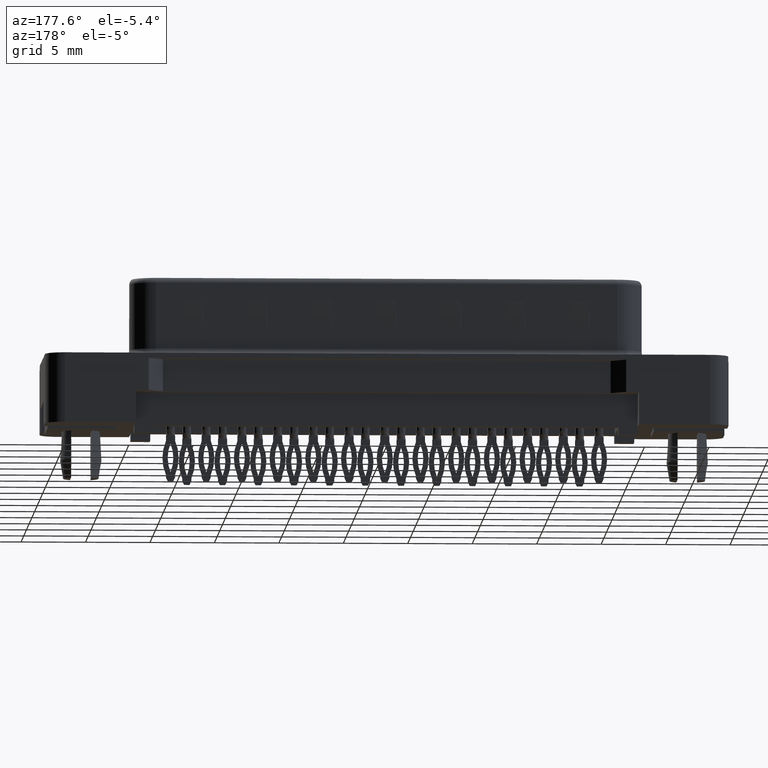
[diagram: clean part render]
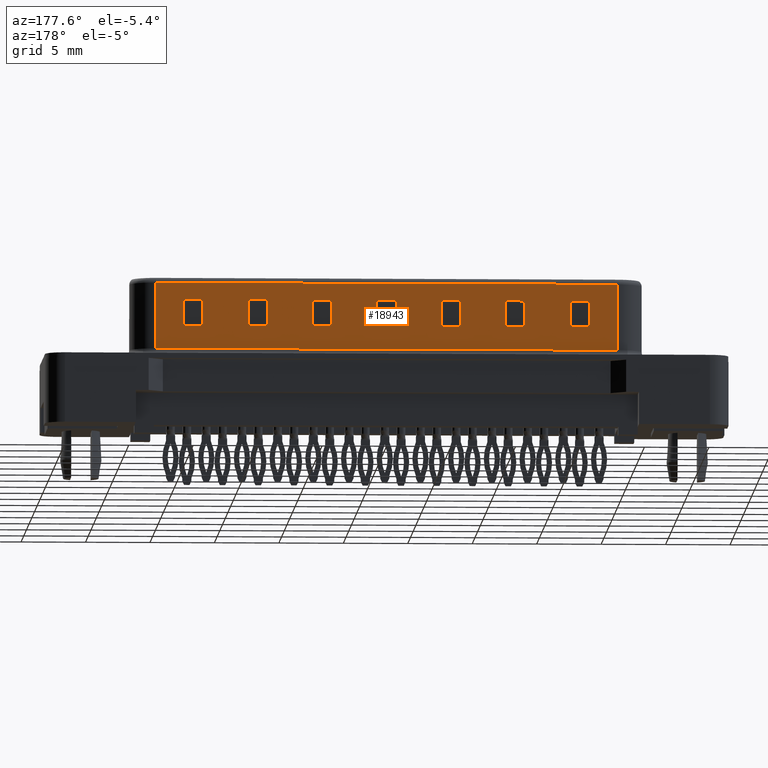
[diagram: same view with one face highlighted and labeled with its STEP entity id]
A machine part, auxiliary view. The second image highlights one B-rep face of the part: STEP entity #18943.
In plain terms, the highlighted planar face has unit normal (0, -1, 0).
Its self-contained STEP definition (entity closure, byte-faithful):
#24 = DIRECTION ( 'NONE',  ( -0.0000000000000000000, -0.0000000000000000000, 1.000000000000000000 ) ) ;
#65 = VECTOR ( 'NONE', #20283, 1000.000000000000000 ) ;
#125 = EDGE_CURVE ( 'NONE', #24026, #8981, #22902, .T. ) ;
#197 = DIRECTION ( 'NONE',  ( -1.000000000000000000, -0.0000000000000000000, -0.0000000000000000000 ) ) ;
#309 = EDGE_LOOP ( 'NONE', ( #10667, #2655, #4506, #16925 ) ) ;
#364 = EDGE_CURVE ( 'NONE', #4055, #8902, #10923, .T. ) ;
#512 = EDGE_CURVE ( 'NONE', #4323, #24196, #3724, .T. ) ;
#804 = CARTESIAN_POINT ( 'NONE',  ( 41.40000000000000568, 4.579999999999993854, 0.8999999999999998002 ) ) ;
#886 = VECTOR ( 'NONE', #5452, 1000.000000000000000 ) ;
#912 = VERTEX_POINT ( 'NONE', #8876 ) ;
#943 = FACE_BOUND ( 'NONE', #5695, .T. ) ;
#963 = DIRECTION ( 'NONE',  ( -0.0000000000000000000, -0.0000000000000000000, -1.000000000000000000 ) ) ;
#973 = ORIENTED_EDGE ( 'NONE', *, *, #17812, .F. ) ;
#1200 = PLANE ( 'NONE',  #17786 ) ;
#1355 = CARTESIAN_POINT ( 'NONE',  ( 5.640000000000002345, 4.579999999999998295, 0.8999999999999998002 ) ) ;
#1456 = ORIENTED_EDGE ( 'NONE', *, *, #20299, .F. ) ;
#1622 = ORIENTED_EDGE ( 'NONE', *, *, #9474, .T. ) ;
#1709 = EDGE_CURVE ( 'NONE', #22177, #12489, #12671, .T. ) ;
#1776 = EDGE_CURVE ( 'NONE', #24196, #4055, #24164, .T. ) ;
#1878 = DIRECTION ( 'NONE',  ( 0.0000000000000000000, 0.0000000000000000000, -1.000000000000000000 ) ) ;
#2076 = VECTOR ( 'NONE', #23140, 1000.000000000000000 ) ;
#2430 = VERTEX_POINT ( 'NONE', #12001 ) ;
#2655 = ORIENTED_EDGE ( 'NONE', *, *, #125, .F. ) ;
#2789 = ORIENTED_EDGE ( 'NONE', *, *, #18031, .T. ) ;
#2961 = VERTEX_POINT ( 'NONE', #1355 ) ;
#2976 = CARTESIAN_POINT ( 'NONE',  ( 19.27000000000000668, 4.579999999999998295, 4.704948974278314822 ) ) ;
#2977 = VERTEX_POINT ( 'NONE', #5250 ) ;
#2999 = LINE ( 'NONE', #3116, #7159 ) ;
#3101 = DIRECTION ( 'NONE',  ( -0.0000000000000000000, -0.0000000000000000000, 1.000000000000000000 ) ) ;
#3116 = CARTESIAN_POINT ( 'NONE',  ( 12.77000000000000490, 4.579999999999998295, 4.704948974278314822 ) ) ;
#3131 = LINE ( 'NONE', #10826, #23774 ) ;
#3236 = CARTESIAN_POINT ( 'NONE',  ( 29.27000000000000668, 4.579999999999998295, 4.704948974278314822 ) ) ;
#3266 = DIRECTION ( 'NONE',  ( 1.000000000000000000, 0.0000000000000000000, 0.0000000000000000000 ) ) ;
#3401 = DIRECTION ( 'NONE',  ( -0.0000000000000000000, -0.0000000000000000000, 1.000000000000000000 ) ) ;
#3455 = EDGE_CURVE ( 'NONE', #20840, #7050, #8740, .T. ) ;
#3573 = VECTOR ( 'NONE', #21656, 1000.000000000000000 ) ;
#3724 = LINE ( 'NONE', #3845, #8520 ) ;
#3811 = DIRECTION ( 'NONE',  ( 1.000000000000000000, 0.0000000000000000000, 0.0000000000000000000 ) ) ;
#3822 = CARTESIAN_POINT ( 'NONE',  ( 32.77000000000001023, 4.579999999999998295, 2.704948974278314822 ) ) ;
#3845 = CARTESIAN_POINT ( 'NONE',  ( 29.27000000000000668, 4.579999999999998295, 4.704948974278314822 ) ) ;
#3915 = CARTESIAN_POINT ( 'NONE',  ( 7.770000000000005791, 4.579999999999998295, 4.704948974278314822 ) ) ;
#4055 = VERTEX_POINT ( 'NONE', #6890 ) ;
#4234 = ORIENTED_EDGE ( 'NONE', *, *, #10970, .F. ) ;
#4323 = VERTEX_POINT ( 'NONE', #3236 ) ;
#4348 = LINE ( 'NONE', #18063, #13208 ) ;
#4481 = EDGE_LOOP ( 'NONE', ( #9596, #12976, #18322, #973 ) ) ;
#4506 = ORIENTED_EDGE ( 'NONE', *, *, #24200, .F. ) ;
#4719 = FACE_BOUND ( 'NONE', #11677, .T. ) ;
#4868 = LINE ( 'NONE', #2976, #12480 ) ;
#5250 = CARTESIAN_POINT ( 'NONE',  ( 9.270000000000006679, 4.579999999999998295, 2.704948974278314822 ) ) ;
#5312 = DIRECTION ( 'NONE',  ( -0.0000000000000000000, -0.0000000000000000000, 1.000000000000000000 ) ) ;
#5316 = CARTESIAN_POINT ( 'NONE',  ( 7.770000000000005791, 4.579999999999998295, 4.704948974278314822 ) ) ;
#5339 = VECTOR ( 'NONE', #7562, 1000.000000000000000 ) ;
#5375 = DIRECTION ( 'NONE',  ( 1.000000000000000000, 0.0000000000000000000, 0.0000000000000000000 ) ) ;
#5452 = DIRECTION ( 'NONE',  ( -0.0000000000000000000, -0.0000000000000000000, 1.000000000000000000 ) ) ;
#5586 = DIRECTION ( 'NONE',  ( -1.000000000000000000, -0.0000000000000000000, -0.0000000000000000000 ) ) ;
#5695 = EDGE_LOOP ( 'NONE', ( #23960, #10735, #1456, #23892 ) ) ;
#5756 = CARTESIAN_POINT ( 'NONE',  ( 37.77000000000000313, 4.579999999999998295, 2.704948974278314822 ) ) ;
#5910 = LINE ( 'NONE', #23166, #3573 ) ;
#5993 = CARTESIAN_POINT ( 'NONE',  ( 39.27000000000001023, 4.579999999999998295, 2.704948974278314822 ) ) ;
#6010 = CARTESIAN_POINT ( 'NONE',  ( 14.27000000000000668, 4.579999999999998295, 4.704948974278314822 ) ) ;
#6023 = CARTESIAN_POINT ( 'NONE',  ( 14.27000000000000668, 4.579999999999998295, 4.704948974278314822 ) ) ;
#6303 = VECTOR ( 'NONE', #14491, 1000.000000000000000 ) ;
#6399 = DIRECTION ( 'NONE',  ( -0.0000000000000000000, -0.0000000000000000000, 1.000000000000000000 ) ) ;
#6407 = VERTEX_POINT ( 'NONE', #18661 ) ;
#6622 = DIRECTION ( 'NONE',  ( 0.0000000000000000000, 0.0000000000000000000, -1.000000000000000000 ) ) ;
#6656 = EDGE_CURVE ( 'NONE', #9827, #22071, #9599, .T. ) ;
#6770 = LINE ( 'NONE', #24044, #21724 ) ;
#6828 = LINE ( 'NONE', #24341, #6303 ) ;
#6877 = ORIENTED_EDGE ( 'NONE', *, *, #7710, .F. ) ;
#6890 = CARTESIAN_POINT ( 'NONE',  ( 27.77000000000000668, 4.579999999999998295, 2.704948974278314822 ) ) ;
#6901 = ORIENTED_EDGE ( 'NONE', *, *, #16768, .F. ) ;
#7004 = CARTESIAN_POINT ( 'NONE',  ( 27.77000000000000668, 4.579999999999998295, 4.704948974278314822 ) ) ;
#7050 = VERTEX_POINT ( 'NONE', #17548 ) ;
#7066 = CARTESIAN_POINT ( 'NONE',  ( 24.27000000000000668, 4.579999999999998295, 4.704948974278314822 ) ) ;
#7144 = CARTESIAN_POINT ( 'NONE',  ( 29.27000000000000668, 4.579999999999998295, 2.704948974278314822 ) ) ;
#7159 = VECTOR ( 'NONE', #18339, 1000.000000000000000 ) ;
#7267 = EDGE_CURVE ( 'NONE', #10010, #14269, #18066, .T. ) ;
#7313 = VERTEX_POINT ( 'NONE', #8982 ) ;
#7408 = VECTOR ( 'NONE', #5375, 1000.000000000000000 ) ;
#7486 = ORIENTED_EDGE ( 'NONE', *, *, #21740, .F. ) ;
#7562 = DIRECTION ( 'NONE',  ( 1.000000000000000000, 0.0000000000000000000, 0.0000000000000000000 ) ) ;
#7688 = CARTESIAN_POINT ( 'NONE',  ( 34.27000000000001023, 4.579999999999998295, 4.704948974278314822 ) ) ;
#7698 = VECTOR ( 'NONE', #3101, 1000.000000000000000 ) ;
#7710 = EDGE_CURVE ( 'NONE', #7050, #22177, #18254, .T. ) ;
#7886 = EDGE_CURVE ( 'NONE', #13624, #2961, #9813, .T. ) ;
#7911 = CARTESIAN_POINT ( 'NONE',  ( 5.640000000000002345, 4.579999999999998295, 0.8999999999999998002 ) ) ;
#8109 = EDGE_CURVE ( 'NONE', #19073, #6407, #6770, .T. ) ;
#8278 = CARTESIAN_POINT ( 'NONE',  ( 12.77000000000000490, 4.579999999999998295, 4.704948974278314822 ) ) ;
#8342 = CARTESIAN_POINT ( 'NONE',  ( 9.270000000000006679, 4.579999999999998295, 4.704948974278314822 ) ) ;
#8501 = DIRECTION ( 'NONE',  ( -1.000000000000000000, -0.0000000000000000000, -0.0000000000000000000 ) ) ;
#8520 = VECTOR ( 'NONE', #11417, 1000.000000000000000 ) ;
#8567 = VERTEX_POINT ( 'NONE', #14142 ) ;
#8616 = FACE_BOUND ( 'NONE', #9658, .T. ) ;
#8740 = LINE ( 'NONE', #3822, #17497 ) ;
#8802 = EDGE_CURVE ( 'NONE', #18496, #21436, #16765, .T. ) ;
#8874 = DIRECTION ( 'NONE',  ( 0.0000000000000000000, -0.0000000000000000000, -1.000000000000000000 ) ) ;
#8876 = CARTESIAN_POINT ( 'NONE',  ( 24.27000000000000668, 4.579999999999998295, 2.704948974278314822 ) ) ;
#8902 = VERTEX_POINT ( 'NONE', #12199 ) ;
#8981 = VERTEX_POINT ( 'NONE', #14824 ) ;
#8982 = CARTESIAN_POINT ( 'NONE',  ( 17.77000000000000313, 4.579999999999998295, 4.704948974278314822 ) ) ;
#9036 = VECTOR ( 'NONE', #20727, 1000.000000000000000 ) ;
#9129 = VECTOR ( 'NONE', #17142, 1000.000000000000000 ) ;
#9205 = CARTESIAN_POINT ( 'NONE',  ( 32.77000000000001023, 4.579999999999998295, 4.704948974278314822 ) ) ;
#9251 = LINE ( 'NONE', #24489, #886 ) ;
#9401 = VECTOR ( 'NONE', #9589, 1000.000000000000000 ) ;
#9474 = EDGE_CURVE ( 'NONE', #8567, #13624, #10539, .T. ) ;
#9589 = DIRECTION ( 'NONE',  ( -0.0000000000000000000, -0.0000000000000000000, -1.000000000000000000 ) ) ;
#9596 = ORIENTED_EDGE ( 'NONE', *, *, #8802, .F. ) ;
#9599 = LINE ( 'NONE', #17264, #19537 ) ;
#9658 = EDGE_LOOP ( 'NONE', ( #21558, #4234, #19804, #6877 ) ) ;
#9708 = DIRECTION ( 'NONE',  ( 0.0000000000000000000, 0.0000000000000000000, -1.000000000000000000 ) ) ;
#9795 = VECTOR ( 'NONE', #5312, 1000.000000000000000 ) ;
#9813 = LINE ( 'NONE', #7911, #15223 ) ;
#9827 = VERTEX_POINT ( 'NONE', #10631 ) ;
#9832 = CARTESIAN_POINT ( 'NONE',  ( 32.77000000000001023, 4.579999999999998295, 4.704948974278314822 ) ) ;
#9931 = EDGE_CURVE ( 'NONE', #8902, #4323, #13364, .T. ) ;
#10010 = VERTEX_POINT ( 'NONE', #21171 ) ;
#10078 = ORIENTED_EDGE ( 'NONE', *, *, #13114, .F. ) ;
#10295 = CARTESIAN_POINT ( 'NONE',  ( 34.27000000000001023, 4.579999999999998295, 4.704948974278314822 ) ) ;
#10395 = VECTOR ( 'NONE', #6399, 1000.000000000000000 ) ;
#10429 = CARTESIAN_POINT ( 'NONE',  ( 7.770000000000005791, 4.579999999999998295, 2.704948974278314822 ) ) ;
#10539 = LINE ( 'NONE', #14660, #19926 ) ;
#10589 = LINE ( 'NONE', #20520, #17820 ) ;
#10631 = CARTESIAN_POINT ( 'NONE',  ( 37.77000000000000313, 4.579999999999998295, 2.704948974278314822 ) ) ;
#10667 = ORIENTED_EDGE ( 'NONE', *, *, #15140, .F. ) ;
#10735 = ORIENTED_EDGE ( 'NONE', *, *, #7267, .F. ) ;
#10826 = CARTESIAN_POINT ( 'NONE',  ( 9.270000000000006679, 4.579999999999998295, 4.704948974278314822 ) ) ;
#10870 = EDGE_CURVE ( 'NONE', #7313, #14283, #6828, .T. ) ;
#10923 = LINE ( 'NONE', #7004, #7698 ) ;
#10970 = EDGE_CURVE ( 'NONE', #12489, #20840, #23307, .T. ) ;
#11220 = DIRECTION ( 'NONE',  ( -1.000000000000000000, 0.0000000000000000000, 0.0000000000000000000 ) ) ;
#11239 = LINE ( 'NONE', #17123, #5339 ) ;
#11244 = CARTESIAN_POINT ( 'NONE',  ( 17.77000000000000313, 4.579999999999998295, 2.704948974278314822 ) ) ;
#11305 = ORIENTED_EDGE ( 'NONE', *, *, #8109, .F. ) ;
#11404 = VERTEX_POINT ( 'NONE', #14305 ) ;
#11417 = DIRECTION ( 'NONE',  ( 0.0000000000000000000, 0.0000000000000000000, -1.000000000000000000 ) ) ;
#11588 = VECTOR ( 'NONE', #21101, 1000.000000000000000 ) ;
#11670 = VERTEX_POINT ( 'NONE', #7066 ) ;
#11677 = EDGE_LOOP ( 'NONE', ( #10078, #6901, #7486, #19240 ) ) ;
#11679 = VERTEX_POINT ( 'NONE', #5316 ) ;
#11767 = EDGE_LOOP ( 'NONE', ( #19511, #17418, #18879, #19475 ) ) ;
#11933 = CARTESIAN_POINT ( 'NONE',  ( 34.27000000000001023, 4.579999999999998295, 2.704948974278314822 ) ) ;
#12001 = CARTESIAN_POINT ( 'NONE',  ( 12.77000000000000490, 4.579999999999998295, 2.704948974278314822 ) ) ;
#12199 = CARTESIAN_POINT ( 'NONE',  ( 27.77000000000000668, 4.579999999999998295, 4.704948974278314822 ) ) ;
#12322 = DIRECTION ( 'NONE',  ( 0.0000000000000000000, 0.0000000000000000000, -1.000000000000000000 ) ) ;
#12420 = CARTESIAN_POINT ( 'NONE',  ( 12.77000000000000490, 4.579999999999998295, 4.704948974278314822 ) ) ;
#12423 = VECTOR ( 'NONE', #197, 1000.000000000000000 ) ;
#12480 = VECTOR ( 'NONE', #6622, 1000.000000000000000 ) ;
#12489 = VERTEX_POINT ( 'NONE', #10295 ) ;
#12671 = LINE ( 'NONE', #18328, #7408 ) ;
#12798 = CARTESIAN_POINT ( 'NONE',  ( 27.77000000000000668, 4.579999999999998295, 2.704948974278314822 ) ) ;
#12805 = EDGE_CURVE ( 'NONE', #912, #19073, #23242, .T. ) ;
#12976 = ORIENTED_EDGE ( 'NONE', *, *, #15870, .F. ) ;
#13114 = EDGE_CURVE ( 'NONE', #2977, #20979, #4348, .T. ) ;
#13208 = VECTOR ( 'NONE', #8501, 1000.000000000000000 ) ;
#13364 = LINE ( 'NONE', #22586, #17917 ) ;
#13417 = CARTESIAN_POINT ( 'NONE',  ( 19.27000000000000668, 4.579999999999998295, 4.704948974278314822 ) ) ;
#13449 = LINE ( 'NONE', #21385, #22845 ) ;
#13624 = VERTEX_POINT ( 'NONE', #804 ) ;
#13759 = DIRECTION ( 'NONE',  ( 1.000000000000000000, 0.0000000000000000000, 0.0000000000000000000 ) ) ;
#13813 = EDGE_CURVE ( 'NONE', #11670, #912, #13449, .T. ) ;
#13849 = ORIENTED_EDGE ( 'NONE', *, *, #12805, .F. ) ;
#13948 = EDGE_CURVE ( 'NONE', #2430, #15893, #23791, .T. ) ;
#14112 = EDGE_LOOP ( 'NONE', ( #13849, #15990, #18237, #11305 ) ) ;
#14142 = CARTESIAN_POINT ( 'NONE',  ( 41.40000000000000568, 4.579999999999993854, 6.020000000000001350 ) ) ;
#14269 = VERTEX_POINT ( 'NONE', #5993 ) ;
#14276 = FACE_BOUND ( 'NONE', #309, .T. ) ;
#14283 = VERTEX_POINT ( 'NONE', #13417 ) ;
#14305 = CARTESIAN_POINT ( 'NONE',  ( 5.640000000000002345, 4.579999999999998295, 6.020000000000001350 ) ) ;
#14398 = FACE_BOUND ( 'NONE', #14112, .T. ) ;
#14491 = DIRECTION ( 'NONE',  ( 1.000000000000000000, 0.0000000000000000000, 0.0000000000000000000 ) ) ;
#14570 = DIRECTION ( 'NONE',  ( -0.0000000000000000000, -0.0000000000000000000, 1.000000000000000000 ) ) ;
#14660 = CARTESIAN_POINT ( 'NONE',  ( 41.40000000000000568, 4.579999999999993854, 6.520000000000000462 ) ) ;
#14824 = CARTESIAN_POINT ( 'NONE',  ( 14.27000000000000668, 4.579999999999998295, 2.704948974278314822 ) ) ;
#15140 = EDGE_CURVE ( 'NONE', #8981, #2430, #5910, .T. ) ;
#15144 = CARTESIAN_POINT ( 'NONE',  ( 22.77000000000000668, 4.579999999999998295, 4.704948974278314822 ) ) ;
#15208 = ORIENTED_EDGE ( 'NONE', *, *, #7886, .T. ) ;
#15223 = VECTOR ( 'NONE', #11220, 1000.000000000000000 ) ;
#15387 = LINE ( 'NONE', #15144, #15933 ) ;
#15870 = EDGE_CURVE ( 'NONE', #14283, #18496, #4868, .T. ) ;
#15893 = VERTEX_POINT ( 'NONE', #12420 ) ;
#15933 = VECTOR ( 'NONE', #13759, 1000.000000000000000 ) ;
#15990 = ORIENTED_EDGE ( 'NONE', *, *, #13813, .F. ) ;
#16136 = CARTESIAN_POINT ( 'NONE',  ( 5.640000000000002345, 4.579999999999998295, 6.020000000000001350 ) ) ;
#16287 = FACE_BOUND ( 'NONE', #11767, .T. ) ;
#16413 = CARTESIAN_POINT ( 'NONE',  ( 5.640000000000002345, 4.579999999999998295, 6.520000000000000462 ) ) ;
#16454 = VECTOR ( 'NONE', #3401, 1000.000000000000000 ) ;
#16765 = LINE ( 'NONE', #22582, #9129 ) ;
#16768 = EDGE_CURVE ( 'NONE', #23100, #2977, #3131, .T. ) ;
#16882 = LINE ( 'NONE', #3915, #9795 ) ;
#16925 = ORIENTED_EDGE ( 'NONE', *, *, #13948, .F. ) ;
#17123 = CARTESIAN_POINT ( 'NONE',  ( 37.77000000000000313, 4.579999999999998295, 4.704948974278314822 ) ) ;
#17127 = CARTESIAN_POINT ( 'NONE',  ( 5.640000000000002345, 4.579999999999998295, 6.520000000000000462 ) ) ;
#17142 = DIRECTION ( 'NONE',  ( -1.000000000000000000, -0.0000000000000000000, -0.0000000000000000000 ) ) ;
#17197 = LINE ( 'NONE', #5756, #11588 ) ;
#17264 = CARTESIAN_POINT ( 'NONE',  ( 37.77000000000000313, 4.579999999999998295, 4.704948974278314822 ) ) ;
#17418 = ORIENTED_EDGE ( 'NONE', *, *, #512, .F. ) ;
#17427 = CARTESIAN_POINT ( 'NONE',  ( 22.77000000000000668, 4.579999999999998295, 2.704948974278314822 ) ) ;
#17497 = VECTOR ( 'NONE', #5586, 1000.000000000000000 ) ;
#17548 = CARTESIAN_POINT ( 'NONE',  ( 32.77000000000001023, 4.579999999999998295, 2.704948974278314822 ) ) ;
#17786 = AXIS2_PLACEMENT_3D ( 'NONE', #16413, #20073, #8874 ) ;
#17812 = EDGE_CURVE ( 'NONE', #21436, #7313, #9251, .T. ) ;
#17820 = VECTOR ( 'NONE', #3266, 1000.000000000000000 ) ;
#17822 = CARTESIAN_POINT ( 'NONE',  ( 19.27000000000001023, 4.579999999999998295, 2.704948974278314822 ) ) ;
#17917 = VECTOR ( 'NONE', #3811, 1000.000000000000000 ) ;
#18031 = EDGE_CURVE ( 'NONE', #11404, #8567, #20162, .T. ) ;
#18063 = CARTESIAN_POINT ( 'NONE',  ( 7.770000000000005791, 4.579999999999998295, 2.704948974278314822 ) ) ;
#18066 = LINE ( 'NONE', #24474, #23670 ) ;
#18189 = DIRECTION ( 'NONE',  ( 0.0000000000000000000, 0.0000000000000000000, -1.000000000000000000 ) ) ;
#18237 = ORIENTED_EDGE ( 'NONE', *, *, #22859, .F. ) ;
#18254 = LINE ( 'NONE', #9205, #16454 ) ;
#18322 = ORIENTED_EDGE ( 'NONE', *, *, #10870, .F. ) ;
#18328 = CARTESIAN_POINT ( 'NONE',  ( 32.77000000000001023, 4.579999999999998295, 4.704948974278314822 ) ) ;
#18339 = DIRECTION ( 'NONE',  ( 1.000000000000000000, 0.0000000000000000000, 0.0000000000000000000 ) ) ;
#18425 = FACE_BOUND ( 'NONE', #4481, .T. ) ;
#18496 = VERTEX_POINT ( 'NONE', #17822 ) ;
#18661 = CARTESIAN_POINT ( 'NONE',  ( 22.77000000000000668, 4.579999999999998295, 4.704948974278314822 ) ) ;
#18879 = ORIENTED_EDGE ( 'NONE', *, *, #9931, .F. ) ;
#18943 = ADVANCED_FACE ( 'NONE', ( #8616, #943, #18425, #14276, #4719, #16287, #14398, #21972 ), #1200, .F. ) ;
#19073 = VERTEX_POINT ( 'NONE', #24363 ) ;
#19240 = ORIENTED_EDGE ( 'NONE', *, *, #20265, .F. ) ;
#19264 = LINE ( 'NONE', #17127, #9401 ) ;
#19475 = ORIENTED_EDGE ( 'NONE', *, *, #364, .F. ) ;
#19511 = ORIENTED_EDGE ( 'NONE', *, *, #1776, .F. ) ;
#19537 = VECTOR ( 'NONE', #24, 1000.000000000000000 ) ;
#19740 = ORIENTED_EDGE ( 'NONE', *, *, #21480, .F. ) ;
#19804 = ORIENTED_EDGE ( 'NONE', *, *, #1709, .F. ) ;
#19926 = VECTOR ( 'NONE', #963, 1000.000000000000000 ) ;
#19975 = VECTOR ( 'NONE', #9708, 1000.000000000000000 ) ;
#20073 = DIRECTION ( 'NONE',  ( 0.0000000000000000000, -1.000000000000000000, 0.0000000000000000000 ) ) ;
#20162 = LINE ( 'NONE', #16136, #65 ) ;
#20265 = EDGE_CURVE ( 'NONE', #20979, #11679, #16882, .T. ) ;
#20283 = DIRECTION ( 'NONE',  ( 1.000000000000000000, -0.0000000000000000000, -0.0000000000000000000 ) ) ;
#20299 = EDGE_CURVE ( 'NONE', #22071, #10010, #11239, .T. ) ;
#20520 = CARTESIAN_POINT ( 'NONE',  ( 7.770000000000005791, 4.579999999999998295, 4.704948974278314822 ) ) ;
#20727 = DIRECTION ( 'NONE',  ( -1.000000000000000000, -0.0000000000000000000, -0.0000000000000000000 ) ) ;
#20840 = VERTEX_POINT ( 'NONE', #11933 ) ;
#20896 = EDGE_LOOP ( 'NONE', ( #19740, #2789, #1622, #15208 ) ) ;
#20979 = VERTEX_POINT ( 'NONE', #10429 ) ;
#21101 = DIRECTION ( 'NONE',  ( -1.000000000000000000, -0.0000000000000000000, -0.0000000000000000000 ) ) ;
#21171 = CARTESIAN_POINT ( 'NONE',  ( 39.27000000000000313, 4.579999999999998295, 4.704948974278314822 ) ) ;
#21385 = CARTESIAN_POINT ( 'NONE',  ( 24.27000000000000668, 4.579999999999998295, 4.704948974278314822 ) ) ;
#21436 = VERTEX_POINT ( 'NONE', #11244 ) ;
#21480 = EDGE_CURVE ( 'NONE', #11404, #2961, #19264, .T. ) ;
#21558 = ORIENTED_EDGE ( 'NONE', *, *, #3455, .F. ) ;
#21656 = DIRECTION ( 'NONE',  ( -1.000000000000000000, -0.0000000000000000000, -0.0000000000000000000 ) ) ;
#21724 = VECTOR ( 'NONE', #14570, 1000.000000000000000 ) ;
#21740 = EDGE_CURVE ( 'NONE', #11679, #23100, #10589, .T. ) ;
#21972 = FACE_OUTER_BOUND ( 'NONE', #20896, .T. ) ;
#22071 = VERTEX_POINT ( 'NONE', #24834 ) ;
#22177 = VERTEX_POINT ( 'NONE', #9832 ) ;
#22582 = CARTESIAN_POINT ( 'NONE',  ( 17.77000000000000313, 4.579999999999998295, 2.704948974278314822 ) ) ;
#22586 = CARTESIAN_POINT ( 'NONE',  ( 27.77000000000000668, 4.579999999999998295, 4.704948974278314822 ) ) ;
#22845 = VECTOR ( 'NONE', #1878, 1000.000000000000000 ) ;
#22859 = EDGE_CURVE ( 'NONE', #6407, #11670, #15387, .T. ) ;
#22902 = LINE ( 'NONE', #6010, #2076 ) ;
#23100 = VERTEX_POINT ( 'NONE', #8342 ) ;
#23140 = DIRECTION ( 'NONE',  ( 0.0000000000000000000, 0.0000000000000000000, -1.000000000000000000 ) ) ;
#23166 = CARTESIAN_POINT ( 'NONE',  ( 12.77000000000000490, 4.579999999999998295, 2.704948974278314822 ) ) ;
#23242 = LINE ( 'NONE', #17427, #12423 ) ;
#23307 = LINE ( 'NONE', #7688, #19975 ) ;
#23670 = VECTOR ( 'NONE', #18189, 1000.000000000000000 ) ;
#23774 = VECTOR ( 'NONE', #12322, 1000.000000000000000 ) ;
#23791 = LINE ( 'NONE', #8278, #10395 ) ;
#23892 = ORIENTED_EDGE ( 'NONE', *, *, #6656, .F. ) ;
#23960 = ORIENTED_EDGE ( 'NONE', *, *, #24379, .F. ) ;
#24026 = VERTEX_POINT ( 'NONE', #6023 ) ;
#24044 = CARTESIAN_POINT ( 'NONE',  ( 22.77000000000000668, 4.579999999999998295, 4.704948974278314822 ) ) ;
#24164 = LINE ( 'NONE', #12798, #9036 ) ;
#24196 = VERTEX_POINT ( 'NONE', #7144 ) ;
#24200 = EDGE_CURVE ( 'NONE', #15893, #24026, #2999, .T. ) ;
#24341 = CARTESIAN_POINT ( 'NONE',  ( 17.77000000000000313, 4.579999999999998295, 4.704948974278314822 ) ) ;
#24363 = CARTESIAN_POINT ( 'NONE',  ( 22.77000000000000668, 4.579999999999998295, 2.704948974278314822 ) ) ;
#24379 = EDGE_CURVE ( 'NONE', #14269, #9827, #17197, .T. ) ;
#24474 = CARTESIAN_POINT ( 'NONE',  ( 39.27000000000000313, 4.579999999999998295, 4.704948974278314822 ) ) ;
#24489 = CARTESIAN_POINT ( 'NONE',  ( 17.77000000000000313, 4.579999999999998295, 4.704948974278314822 ) ) ;
#24834 = CARTESIAN_POINT ( 'NONE',  ( 37.77000000000000313, 4.579999999999998295, 4.704948974278314822 ) ) ;